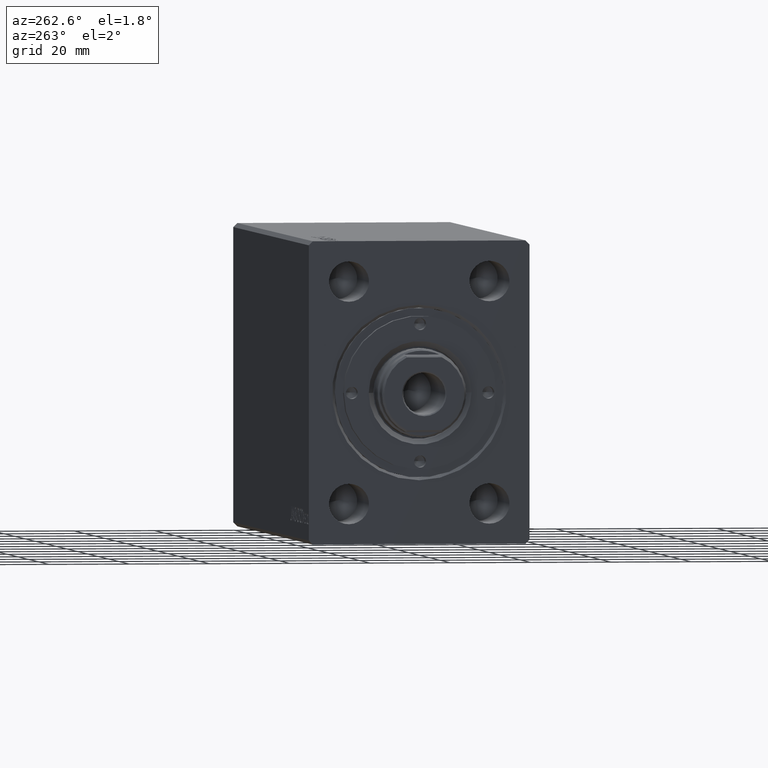
[diagram: clean part render]
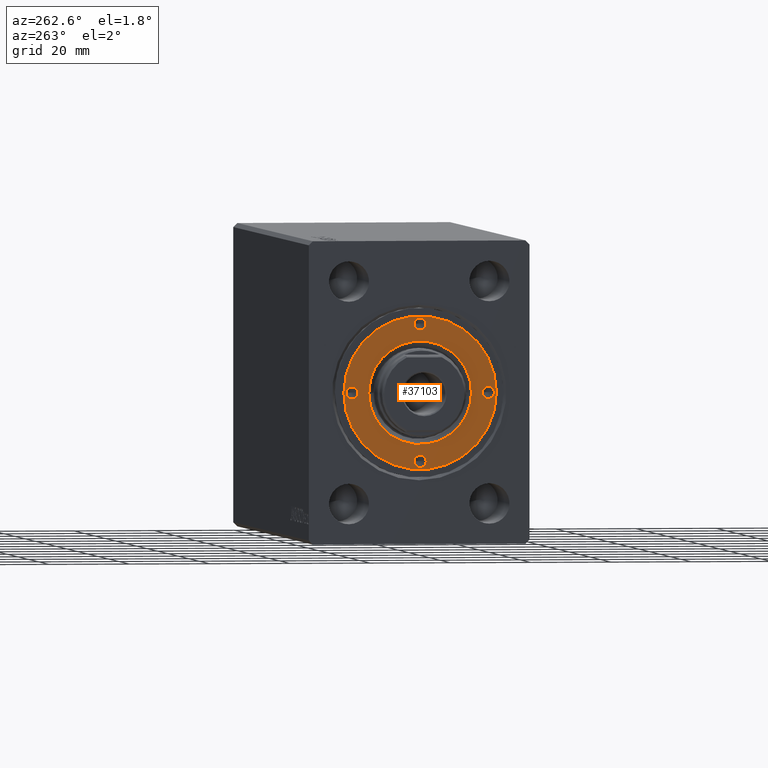
[diagram: same view with one face highlighted and labeled with its STEP entity id]
A machine part, auxiliary view. The second image highlights one B-rep face of the part: STEP entity #37103.
In plain terms, the highlighted planar face has unit normal (-1, 0, 0).
Its self-contained STEP definition (entity closure, byte-faithful):
#89 = VERTEX_POINT ( 'NONE', #20101 ) ;
#184 = DIRECTION ( 'NONE',  ( -0.000000000000000000, -0.000000000000000000, 1.000000000000000000 ) ) ;
#575 = CARTESIAN_POINT ( 'NONE',  ( -17.00000000000000000, 0.000000000000000000, 66.79999999999999716 ) ) ;
#682 = VERTEX_POINT ( 'NONE', #20156 ) ;
#793 = CARTESIAN_POINT ( 'NONE',  ( 1.499999999999996891, -17.00000000000000000, 66.79999999999999716 ) ) ;
#997 = DIRECTION ( 'NONE',  ( 1.000000000000000000, 0.000000000000000000, 0.000000000000000000 ) ) ;
#1257 = DIRECTION ( 'NONE',  ( 0.000000000000000000, 0.000000000000000000, 1.000000000000000000 ) ) ;
#1402 = EDGE_CURVE ( 'NONE', #36556, #13338, #16148, .T. ) ;
#2061 = DIRECTION ( 'NONE',  ( -0.000000000000000000, -0.000000000000000000, 1.000000000000000000 ) ) ;
#2082 = ORIENTED_EDGE ( 'NONE', *, *, #42623, .T. ) ;
#2400 = FACE_BOUND ( 'NONE', #43670, .T. ) ;
#2742 = CARTESIAN_POINT ( 'NONE',  ( 17.00000000000000000, 0.000000000000000000, 66.79999999999999716 ) ) ;
#2958 = EDGE_LOOP ( 'NONE', ( #18890, #14256 ) ) ;
#3056 = PLANE ( 'NONE',  #6032 ) ;
#3243 = DIRECTION ( 'NONE',  ( 0.000000000000000000, 0.000000000000000000, 1.000000000000000000 ) ) ;
#3877 = CIRCLE ( 'NONE', #27360, 1.499999999999997780 ) ;
#4171 = VERTEX_POINT ( 'NONE', #25688 ) ;
#4384 = CARTESIAN_POINT ( 'NONE',  ( 0.000000000000000000, 0.000000000000000000, 66.79999999999999716 ) ) ;
#4534 = CIRCLE ( 'NONE', #8120, 1.499999999999996891 ) ;
#5086 = EDGE_CURVE ( 'NONE', #33895, #40285, #43901, .T. ) ;
#5328 = EDGE_CURVE ( 'NONE', #13645, #38734, #27544, .T. ) ;
#5745 = FACE_BOUND ( 'NONE', #2958, .T. ) ;
#6032 = AXIS2_PLACEMENT_3D ( 'NONE', #43854, #6624, #13085 ) ;
#6501 = ORIENTED_EDGE ( 'NONE', *, *, #5086, .F. ) ;
#6510 = EDGE_LOOP ( 'NONE', ( #6501, #22493 ) ) ;
#6624 = DIRECTION ( 'NONE',  ( 0.000000000000000000, 0.000000000000000000, 1.000000000000000000 ) ) ;
#6742 = AXIS2_PLACEMENT_3D ( 'NONE', #18313, #10946, #21440 ) ;
#6753 = DIRECTION ( 'NONE',  ( 1.000000000000000000, 0.000000000000000000, 0.000000000000000000 ) ) ;
#7322 = DIRECTION ( 'NONE',  ( -0.000000000000000000, -0.000000000000000000, 1.000000000000000000 ) ) ;
#7360 = DIRECTION ( 'NONE',  ( -0.000000000000000000, -0.000000000000000000, -1.000000000000000000 ) ) ;
#7476 = DIRECTION ( 'NONE',  ( -0.000000000000000000, -0.000000000000000000, 1.000000000000000000 ) ) ;
#7670 = CIRCLE ( 'NONE', #20501, 19.00000000000000000 ) ;
#7680 = EDGE_LOOP ( 'NONE', ( #11330, #28503 ) ) ;
#7799 = CARTESIAN_POINT ( 'NONE',  ( 0.000000000000000000, 0.000000000000000000, 66.79999999999999716 ) ) ;
#8120 = AXIS2_PLACEMENT_3D ( 'NONE', #19236, #2061, #32173 ) ;
#10058 = DIRECTION ( 'NONE',  ( -0.000000000000000000, -0.000000000000000000, 1.000000000000000000 ) ) ;
#10370 = DIRECTION ( 'NONE',  ( -0.000000000000000000, -0.000000000000000000, 1.000000000000000000 ) ) ;
#10946 = DIRECTION ( 'NONE',  ( -0.000000000000000000, -0.000000000000000000, 1.000000000000000000 ) ) ;
#11330 = ORIENTED_EDGE ( 'NONE', *, *, #25523, .F. ) ;
#11374 = EDGE_CURVE ( 'NONE', #89, #682, #19880, .T. ) ;
#11566 = ORIENTED_EDGE ( 'NONE', *, *, #36427, .F. ) ;
#11718 = CARTESIAN_POINT ( 'NONE',  ( 0.000000000000000000, 0.000000000000000000, 66.79999999999999716 ) ) ;
#12130 = AXIS2_PLACEMENT_3D ( 'NONE', #7799, #7360, #17635 ) ;
#12426 = EDGE_CURVE ( 'NONE', #38734, #13645, #43387, .T. ) ;
#13085 = DIRECTION ( 'NONE',  ( 1.000000000000000000, 0.000000000000000000, -0.000000000000000000 ) ) ;
#13338 = VERTEX_POINT ( 'NONE', #793 ) ;
#13558 = CARTESIAN_POINT ( 'NONE',  ( -19.00000000000000000, 0.000000000000000000, 66.79999999999999716 ) ) ;
#13627 = DIRECTION ( 'NONE',  ( 1.000000000000000000, 0.000000000000000000, 0.000000000000000000 ) ) ;
#13645 = VERTEX_POINT ( 'NONE', #25479 ) ;
#14110 = CARTESIAN_POINT ( 'NONE',  ( 12.79999999999997229, 0.000000000000000000, 66.79999999999999716 ) ) ;
#14256 = ORIENTED_EDGE ( 'NONE', *, *, #12426, .F. ) ;
#14865 = DIRECTION ( 'NONE',  ( 1.000000000000000000, 0.000000000000000000, 0.000000000000000000 ) ) ;
#15834 = CARTESIAN_POINT ( 'NONE',  ( 0.000000000000000000, 17.00000000000000000, 66.79999999999999716 ) ) ;
#16148 = CIRCLE ( 'NONE', #16876, 1.499999999999996891 ) ;
#16374 = EDGE_CURVE ( 'NONE', #22726, #24567, #37081, .T. ) ;
#16528 = CARTESIAN_POINT ( 'NONE',  ( -15.50000000000000355, 0.000000000000000000, 66.79999999999999716 ) ) ;
#16856 = DIRECTION ( 'NONE',  ( 1.000000000000000000, 0.000000000000000000, 0.000000000000000000 ) ) ;
#16876 = AXIS2_PLACEMENT_3D ( 'NONE', #37872, #7322, #18240 ) ;
#16931 = ORIENTED_EDGE ( 'NONE', *, *, #18823, .T. ) ;
#17037 = AXIS2_PLACEMENT_3D ( 'NONE', #2742, #37296, #6753 ) ;
#17586 = ORIENTED_EDGE ( 'NONE', *, *, #11374, .F. ) ;
#17635 = DIRECTION ( 'NONE',  ( 1.000000000000000000, 0.000000000000000000, 0.000000000000000000 ) ) ;
#18240 = DIRECTION ( 'NONE',  ( 1.000000000000000000, 0.000000000000000000, 0.000000000000000000 ) ) ;
#18313 = CARTESIAN_POINT ( 'NONE',  ( 17.00000000000000000, 0.000000000000000000, 66.79999999999999716 ) ) ;
#18762 = CARTESIAN_POINT ( 'NONE',  ( -1.499999999999996891, -17.00000000000000000, 66.79999999999999716 ) ) ;
#18823 = EDGE_CURVE ( 'NONE', #24567, #22726, #27095, .T. ) ;
#18890 = ORIENTED_EDGE ( 'NONE', *, *, #5328, .F. ) ;
#19236 = CARTESIAN_POINT ( 'NONE',  ( 0.000000000000000000, -17.00000000000000000, 66.79999999999999716 ) ) ;
#19465 = EDGE_LOOP ( 'NONE', ( #2082, #43751 ) ) ;
#19567 = FACE_BOUND ( 'NONE', #7680, .T. ) ;
#19880 = CIRCLE ( 'NONE', #17037, 1.499999999999997780 ) ;
#20101 = CARTESIAN_POINT ( 'NONE',  ( 18.50000000000000000, 0.000000000000000000, 66.79999999999999716 ) ) ;
#20156 = CARTESIAN_POINT ( 'NONE',  ( 15.50000000000000355, 1.836970198721027222E-16, 66.79999999999999716 ) ) ;
#20501 = AXIS2_PLACEMENT_3D ( 'NONE', #30008, #3243, #40694 ) ;
#21440 = DIRECTION ( 'NONE',  ( 1.000000000000000000, 0.000000000000000000, 0.000000000000000000 ) ) ;
#22493 = ORIENTED_EDGE ( 'NONE', *, *, #26167, .F. ) ;
#22726 = VERTEX_POINT ( 'NONE', #23743 ) ;
#22776 = AXIS2_PLACEMENT_3D ( 'NONE', #40914, #10370, #997 ) ;
#23465 = EDGE_LOOP ( 'NONE', ( #16931, #36163 ) ) ;
#23584 = FACE_BOUND ( 'NONE', #23465, .T. ) ;
#23743 = CARTESIAN_POINT ( 'NONE',  ( -12.79999999999997229, 1.567547902908608634E-15, 66.79999999999999716 ) ) ;
#24567 = VERTEX_POINT ( 'NONE', #14110 ) ;
#25479 = CARTESIAN_POINT ( 'NONE',  ( 1.499999999999996891, 17.00000000000000000, 66.79999999999999716 ) ) ;
#25523 = EDGE_CURVE ( 'NONE', #13338, #36556, #4534, .T. ) ;
#25688 = CARTESIAN_POINT ( 'NONE',  ( 19.00000000000000000, 2.326828918379970970E-15, 66.79999999999999716 ) ) ;
#26167 = EDGE_CURVE ( 'NONE', #40285, #33895, #3877, .T. ) ;
#26697 = CIRCLE ( 'NONE', #6742, 1.499999999999997780 ) ;
#26788 = CARTESIAN_POINT ( 'NONE',  ( -17.00000000000000000, 0.000000000000000000, 66.79999999999999716 ) ) ;
#26803 = CARTESIAN_POINT ( 'NONE',  ( -18.50000000000000000, 1.836970198721026236E-16, 66.79999999999999716 ) ) ;
#27095 = CIRCLE ( 'NONE', #12130, 12.79999999999997051 ) ;
#27360 = AXIS2_PLACEMENT_3D ( 'NONE', #575, #7476, #16856 ) ;
#27544 = CIRCLE ( 'NONE', #36786, 1.499999999999996891 ) ;
#28503 = ORIENTED_EDGE ( 'NONE', *, *, #1402, .F. ) ;
#30008 = CARTESIAN_POINT ( 'NONE',  ( 0.000000000000000000, 0.000000000000000000, 66.79999999999999716 ) ) ;
#31590 = DIRECTION ( 'NONE',  ( -0.000000000000000000, -0.000000000000000000, -1.000000000000000000 ) ) ;
#32173 = DIRECTION ( 'NONE',  ( 1.000000000000000000, 0.000000000000000000, 0.000000000000000000 ) ) ;
#33376 = EDGE_CURVE ( 'NONE', #4171, #38599, #7670, .T. ) ;
#33895 = VERTEX_POINT ( 'NONE', #16528 ) ;
#34966 = AXIS2_PLACEMENT_3D ( 'NONE', #4384, #31590, #38697 ) ;
#35350 = AXIS2_PLACEMENT_3D ( 'NONE', #11718, #1257, #14865 ) ;
#35365 = AXIS2_PLACEMENT_3D ( 'NONE', #26788, #10058, #13627 ) ;
#36163 = ORIENTED_EDGE ( 'NONE', *, *, #16374, .T. ) ;
#36427 = EDGE_CURVE ( 'NONE', #682, #89, #26697, .T. ) ;
#36556 = VERTEX_POINT ( 'NONE', #18762 ) ;
#36786 = AXIS2_PLACEMENT_3D ( 'NONE', #15834, #184, #44124 ) ;
#37081 = CIRCLE ( 'NONE', #34966, 12.79999999999997051 ) ;
#37103 = ADVANCED_FACE ( 'NONE', ( #37163, #5745, #2400, #19567, #23584, #43421 ), #3056, .T. ) ;
#37163 = FACE_BOUND ( 'NONE', #6510, .T. ) ;
#37296 = DIRECTION ( 'NONE',  ( -0.000000000000000000, -0.000000000000000000, 1.000000000000000000 ) ) ;
#37872 = CARTESIAN_POINT ( 'NONE',  ( 0.000000000000000000, -17.00000000000000000, 66.79999999999999716 ) ) ;
#38599 = VERTEX_POINT ( 'NONE', #13558 ) ;
#38697 = DIRECTION ( 'NONE',  ( 1.000000000000000000, 0.000000000000000000, 0.000000000000000000 ) ) ;
#38734 = VERTEX_POINT ( 'NONE', #43385 ) ;
#38908 = CIRCLE ( 'NONE', #35350, 19.00000000000000000 ) ;
#40285 = VERTEX_POINT ( 'NONE', #26803 ) ;
#40694 = DIRECTION ( 'NONE',  ( 1.000000000000000000, 0.000000000000000000, 0.000000000000000000 ) ) ;
#40914 = CARTESIAN_POINT ( 'NONE',  ( 0.000000000000000000, 17.00000000000000000, 66.79999999999999716 ) ) ;
#42623 = EDGE_CURVE ( 'NONE', #38599, #4171, #38908, .T. ) ;
#43385 = CARTESIAN_POINT ( 'NONE',  ( -1.499999999999996891, 17.00000000000000000, 66.79999999999999716 ) ) ;
#43387 = CIRCLE ( 'NONE', #22776, 1.499999999999996891 ) ;
#43421 = FACE_OUTER_BOUND ( 'NONE', #19465, .T. ) ;
#43670 = EDGE_LOOP ( 'NONE', ( #17586, #11566 ) ) ;
#43751 = ORIENTED_EDGE ( 'NONE', *, *, #33376, .T. ) ;
#43854 = CARTESIAN_POINT ( 'NONE',  ( 0.000000000000000000, 0.000000000000000000, 66.79999999999999716 ) ) ;
#43901 = CIRCLE ( 'NONE', #35365, 1.499999999999997780 ) ;
#44124 = DIRECTION ( 'NONE',  ( 1.000000000000000000, 0.000000000000000000, 0.000000000000000000 ) ) ;